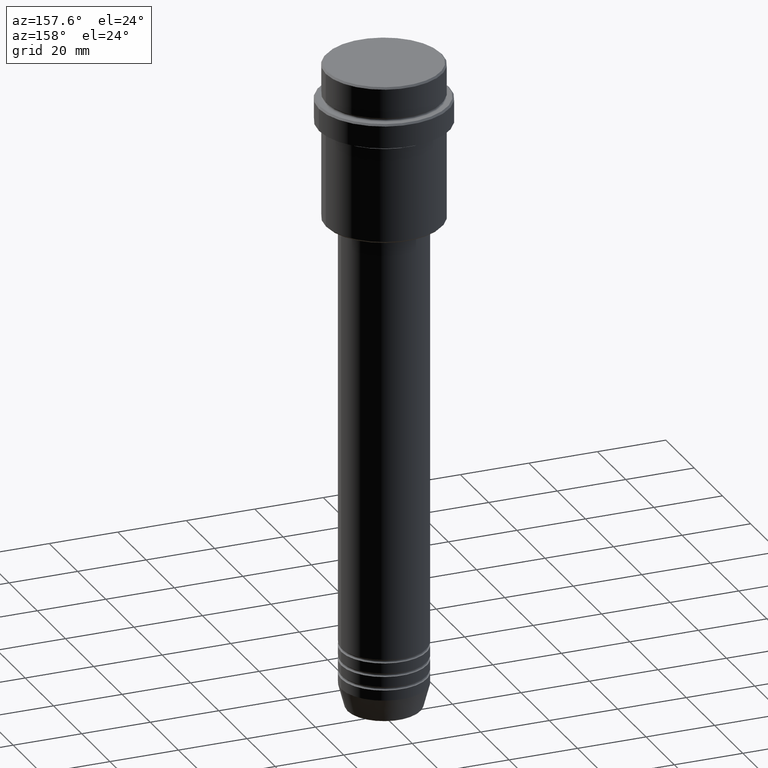
[diagram: clean part render]
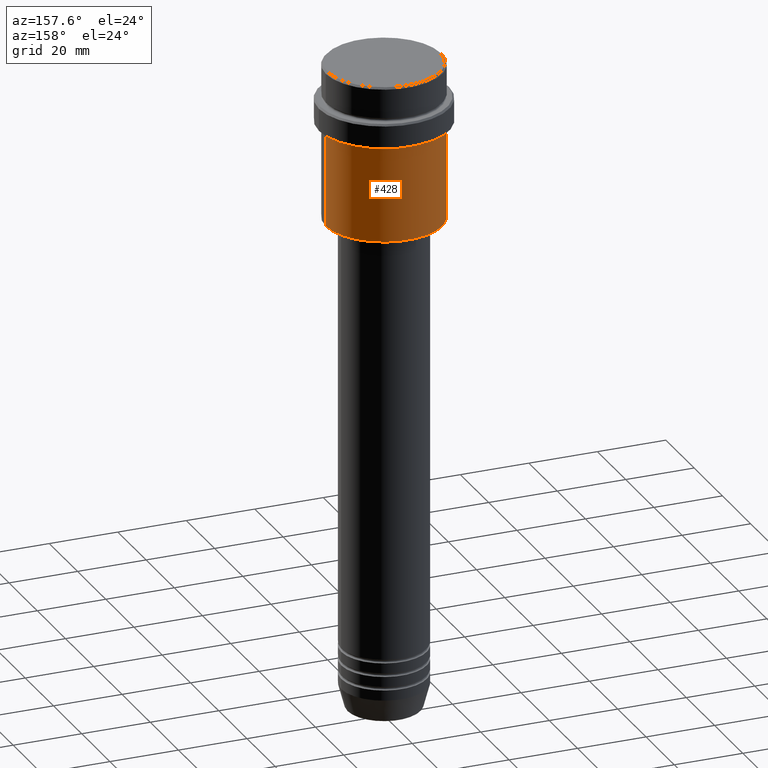
[diagram: same view with one face highlighted and labeled with its STEP entity id]
A machine part, auxiliary view. The second image highlights one B-rep face of the part: STEP entity #428.
In plain terms, the highlighted cylindrical surface (partial cylindrical patch) has radius 17 mm, axis along (-0, -0, 1).
Its self-contained STEP definition (entity closure, byte-faithful):
#20 = DIRECTION ( 'NONE',  ( -0.000000000000000000, -0.000000000000000000, 1.000000000000000000 ) ) ;
#28 = VECTOR ( 'NONE', #20, 1000.000000000000000 ) ;
#43 = LINE ( 'NONE', #254, #28 ) ;
#49 = VECTOR ( 'NONE', #59, 1000.000000000000000 ) ;
#59 = DIRECTION ( 'NONE',  ( -0.000000000000000000, -0.000000000000000000, 1.000000000000000000 ) ) ;
#140 = CARTESIAN_POINT ( 'NONE',  ( -16.99999999999998934, 2.081899558550499491E-15, -45.50000000000003553 ) ) ;
#143 = ORIENTED_EDGE ( 'NONE', *, *, #835, .F. ) ;
#163 = LINE ( 'NONE', #1029, #49 ) ;
#195 = CARTESIAN_POINT ( 'NONE',  ( 16.99999999999998934, 0.000000000000000000, -45.50000000000003553 ) ) ;
#225 = AXIS2_PLACEMENT_3D ( 'NONE', #1156, #605, #1167 ) ;
#254 = CARTESIAN_POINT ( 'NONE',  ( 16.99999999999998934, 0.000000000000000000, 0.000000000000000000 ) ) ;
#265 = FACE_OUTER_BOUND ( 'NONE', #986, .T. ) ;
#385 = AXIS2_PLACEMENT_3D ( 'NONE', #1245, #482, #542 ) ;
#428 = ADVANCED_FACE ( 'NONE', ( #265 ), #934, .T. ) ;
#431 = EDGE_CURVE ( 'NONE', #902, #747, #163, .T. ) ;
#482 = DIRECTION ( 'NONE',  ( -0.000000000000000000, -0.000000000000000000, 1.000000000000000000 ) ) ;
#516 = CARTESIAN_POINT ( 'NONE',  ( 16.99999999999997868, 0.000000000000000000, -18.00000000000000711 ) ) ;
#522 = CIRCLE ( 'NONE', #1355, 16.99999999999998934 ) ;
#542 = DIRECTION ( 'NONE',  ( 1.000000000000000000, 0.000000000000000000, 0.000000000000000000 ) ) ;
#585 = ORIENTED_EDGE ( 'NONE', *, *, #591, .T. ) ;
#591 = EDGE_CURVE ( 'NONE', #736, #902, #522, .T. ) ;
#605 = DIRECTION ( 'NONE',  ( -0.000000000000000000, -0.000000000000000000, 1.000000000000000000 ) ) ;
#606 = VERTEX_POINT ( 'NONE', #516 ) ;
#736 = VERTEX_POINT ( 'NONE', #195 ) ;
#747 = VERTEX_POINT ( 'NONE', #1395 ) ;
#750 = DIRECTION ( 'NONE',  ( -0.000000000000000000, -0.000000000000000000, 1.000000000000000000 ) ) ;
#779 = CIRCLE ( 'NONE', #385, 16.99999999999997868 ) ;
#835 = EDGE_CURVE ( 'NONE', #736, #606, #43, .T. ) ;
#853 = CARTESIAN_POINT ( 'NONE',  ( 0.000000000000000000, 0.000000000000000000, -45.50000000000003553 ) ) ;
#885 = EDGE_CURVE ( 'NONE', #606, #747, #779, .T. ) ;
#902 = VERTEX_POINT ( 'NONE', #140 ) ;
#930 = ORIENTED_EDGE ( 'NONE', *, *, #431, .T. ) ;
#934 = CYLINDRICAL_SURFACE ( 'NONE', #225, 16.99999999999998934 ) ;
#986 = EDGE_LOOP ( 'NONE', ( #585, #930, #1415, #143 ) ) ;
#1029 = CARTESIAN_POINT ( 'NONE',  ( -16.99999999999998934, 2.081899558550499491E-15, 0.000000000000000000 ) ) ;
#1091 = DIRECTION ( 'NONE',  ( -1.000000000000000000, 0.000000000000000000, 0.000000000000000000 ) ) ;
#1156 = CARTESIAN_POINT ( 'NONE',  ( 0.000000000000000000, 0.000000000000000000, 0.000000000000000000 ) ) ;
#1167 = DIRECTION ( 'NONE',  ( 1.000000000000000000, 0.000000000000000000, 0.000000000000000000 ) ) ;
#1245 = CARTESIAN_POINT ( 'NONE',  ( 0.000000000000000000, 0.000000000000000000, -18.00000000000000711 ) ) ;
#1355 = AXIS2_PLACEMENT_3D ( 'NONE', #853, #750, #1091 ) ;
#1395 = CARTESIAN_POINT ( 'NONE',  ( -16.99999999999997868, 2.081899558550498702E-15, -18.00000000000000711 ) ) ;
#1415 = ORIENTED_EDGE ( 'NONE', *, *, #885, .F. ) ;